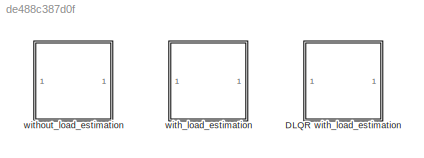
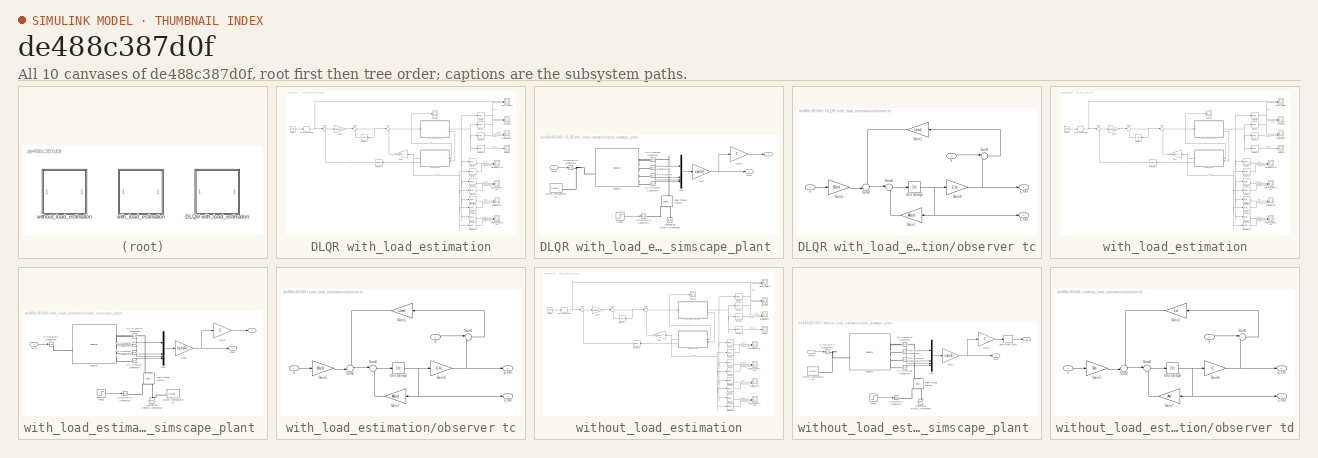
[diagram: thumbnail index - all 10 canvases of the model, root first then tree order]
MODEL slx_de488c387d0f
KIND model
CONFIG AbsTol = auto
CONFIG EnableMultiTasking = off
CONFIG FixedStep = ts
CONFIG MaxStep = ts
CONFIG MinStep = auto
CONFIG RelTol = 1e-3
CONFIG SampleTimeConstraint = Unconstrained
CONFIG SolverName = ode1be
CONFIG StartTime = 0.0
CONFIG StopTime = simlength
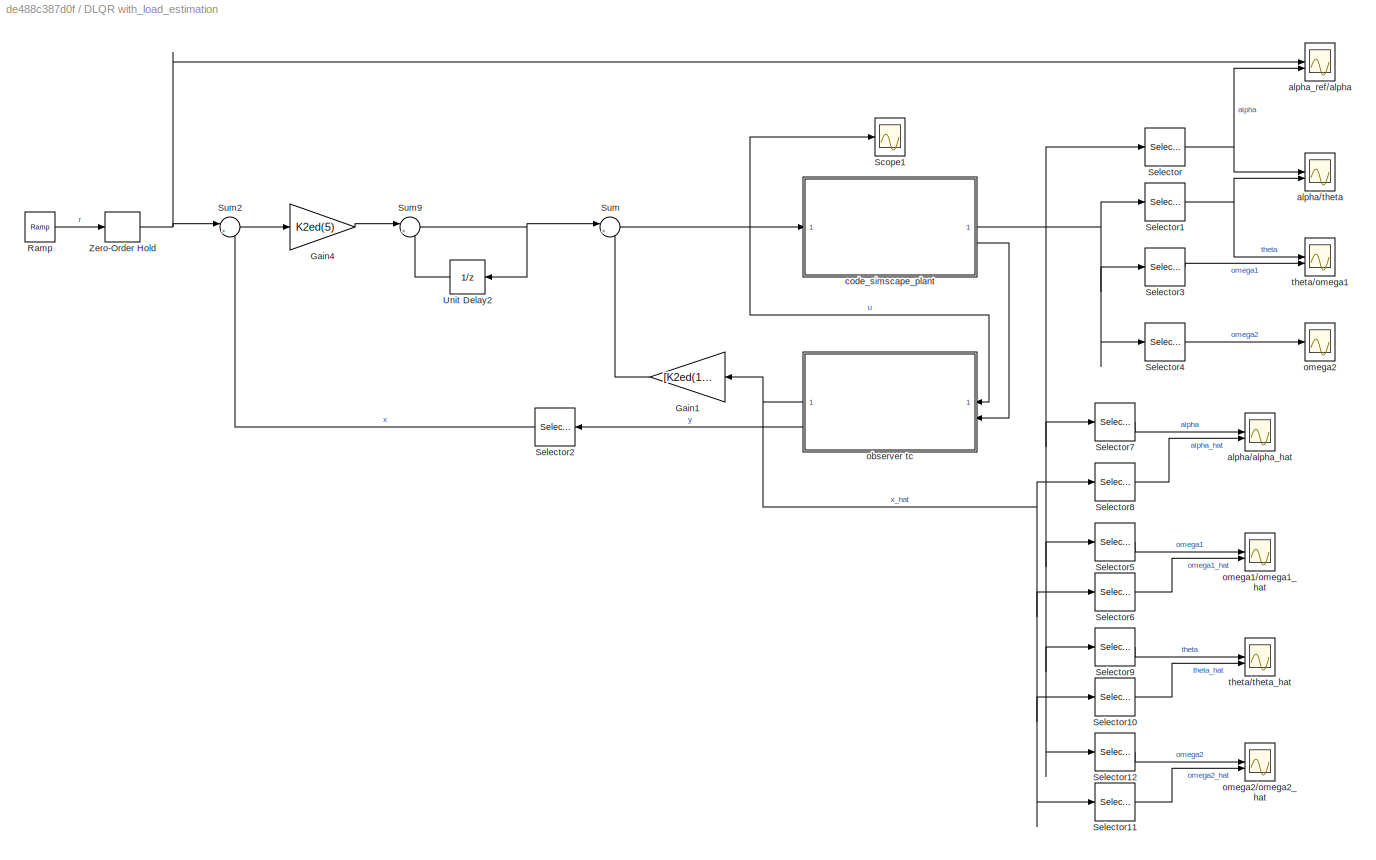
BLOCK [SubSystem] DLQR with_load_estimation
BLOCK [Gain] DLQR with_load_estimation/Gain1
  Gain = [K2ed(1) K2ed(2) K2ed(3) K2ed(4) 0]
  Multiplication = Matrix(K*u)
  NameLocation = top
BLOCK [Gain] DLQR with_load_estimation/Gain4
  Gain = K2ed(5)
  NameLocation = top
BLOCK [Reference] DLQR with_load_estimation/Ramp  REF=simulink/Sources/Ramp
  SourceBlock = simulink/Sources/Ramp
  SourceType = Ramp
BLOCK [Scope] DLQR with_load_estimation/Scope1
  ActiveDisplayYMaximum = 910.39964
  ActiveDisplayYMinimum = -742.20973
  ContainerLayout = {"WindowBounds":[384,156,1280,768],"gridDimensions":{"w":1,"h":1},"tileCount":1,"tileCoverage":1,"columnWeights":1,"rowWeights":1,"tileOccupancy":{"children":[{"id":"/with_load_estimation/Scope1"},{"id":"/DLQR with_load_estimation/Scope1"},{"id":"/with_load_estimation/omega1//omega1_hat"},{"id":"/DLQR with_load_estimation/alpha//alpha_hat"}]}}  <repeated x4 — deduplicated; at blocks: Scope1, alpha/alpha_hat, omega1/omega1_hat>
  DataLoggingVariableName = ScopeData1
  Floating = off
  GraphicalSettings = {"Style":{"BackgroundColor":[0.12941176470588237,0.12941176470588237,0.12941176470588237],"AxesColor":[0.07058823529411765,0.07058823529411765,0.07058823529411765],"LabelsColor":[0.8509803921568627,0.8509803921568627,0.8509803921568627],"PreserveColors":false,"Visible":[true],"LineStyle":["-"],"LineWidth":[3],"BarWidth":[0.9],"LineColor":["auto"],"LineFaceAlpha":[1],"LineEdgeAlpha":[1],"Marker":["...<+1931ch>
  MultipleDisplayCache = [{"MaxYLimMag":910.39964,"MaxYLimReal":910.39964,"MinYLimMag":0,"MinYLimReal":-742.20973,"PlotAsMagnitudePhase":false,"ShowGrid":true,"ShowLegend":true,"Title":"%<SignalLabel>","YLabel":""}]  <repeated x3 — deduplicated; at blocks: Scope1>
  NumInputPorts = 1
  ScopeFrameLocation = container
  ShowLegend = on
  Visible = on
  WasSavedAsWebScope = on
  WindowPosition = [384.000000,156.000000,1280.000000,768.000000,]
BLOCK [Selector] DLQR with_load_estimation/Selector
  IndexOptions = Index vector (dialog)
  Indices = 1
  InputPortWidth = 4
  OutputSizes = 1
BLOCK [Selector] DLQR with_load_estimation/Selector1
  IndexOptions = Index vector (dialog)
  Indices = 3
  InputPortWidth = 4
  OutputSizes = 1
BLOCK [Selector] DLQR with_load_estimation/Selector10
  IndexOptions = Index vector (dialog)
  Indices = 3
  InputPortWidth = 5
  OutputSizes = 1
BLOCK [Selector] DLQR with_load_estimation/Selector11
  IndexOptions = Index vector (dialog)
  Indices = 4
  InputPortWidth = 5
  OutputSizes = 1
BLOCK [Selector] DLQR with_load_estimation/Selector12
  IndexOptions = Index vector (dialog)
  Indices = 4
  InputPortWidth = 4
  OutputSizes = 1
BLOCK [Selector] DLQR with_load_estimation/Selector2
  IndexOptions = Index vector (dialog)
  Indices = 1
  InputPortWidth = 2
  NameLocation = top
  OutputSizes = 1
BLOCK [Selector] DLQR with_load_estimation/Selector3
  IndexOptions = Index vector (dialog)
  Indices = 2
  InputPortWidth = 4
  OutputSizes = 1
BLOCK [Selector] DLQR with_load_estimation/Selector4
  IndexOptions = Index vector (dialog)
  Indices = 4
  InputPortWidth = 4
  OutputSizes = 1
BLOCK [Selector] DLQR with_load_estimation/Selector5
  IndexOptions = Index vector (dialog)
  Indices = 2
  InputPortWidth = 4
  OutputSizes = 1
BLOCK [Selector] DLQR with_load_estimation/Selector6
  IndexOptions = Index vector (dialog)
  Indices = 2
  InputPortWidth = 5
  OutputSizes = 1
BLOCK [Selector] DLQR with_load_estimation/Selector7
  IndexOptions = Index vector (dialog)
  Indices = 1
  InputPortWidth = 4
  OutputSizes = 1
BLOCK [Selector] DLQR with_load_estimation/Selector8
  IndexOptions = Index vector (dialog)
  Indices = 1
  InputPortWidth = 5
  OutputSizes = 1
BLOCK [Selector] DLQR with_load_estimation/Selector9
  IndexOptions = Index vector (dialog)
  Indices = 3
  InputPortWidth = 4
  OutputSizes = 1
BLOCK [Sum] DLQR with_load_estimation/Sum
  Inputs = |+-
BLOCK [Sum] DLQR with_load_estimation/Sum2
  Inputs = |+-
BLOCK [Sum] DLQR with_load_estimation/Sum9
  Inputs = |++
BLOCK [UnitDelay] DLQR with_load_estimation/Unit Delay2
  HasFrameUpgradeWarning = on
  SampleTime = ts
BLOCK [ZeroOrderHold] DLQR with_load_estimation/Zero-Order Hold
  SampleTime = ts
BLOCK [Scope] DLQR with_load_estimation/alpha//alpha_hat
  ActiveDisplayYMaximum = 446.41346
  ActiveDisplayYMinimum = -49.71948
  DataLoggingVariableName = ScopeData1
  Floating = off
  GraphicalSettings = {"Style":{"BackgroundColor":[0.12941176470588237,0.12941176470588237,0.12941176470588237],"AxesColor":[0.07058823529411765,0.07058823529411765,0.07058823529411765],"LabelsColor":[0.8509803921568627,0.8509803921568627,0.8509803921568627],"PreserveColors":false,"Visible":[true,true],"LineStyle":["-","-"],"LineWidth":[3,3],"BarWidth":[0.9,0.9],"LineColor":["auto","auto"],"LineFaceAlpha":[1,1],"LineEd...<+2054ch>
  MultipleDisplayCache = [{"MaxYLimMag":446.41346,"MaxYLimReal":446.41346,"MinYLimMag":0,"MinYLimReal":-49.71948,"PlotAsMagnitudePhase":false,"ShowGrid":true,"ShowLegend":true,"Title":"%<SignalLabel>","YLabel":""}]  <repeated x3 — deduplicated; at blocks: alpha/alpha_hat>
  NumInputPorts = 2
  ScopeFrameLocation = container
  ShowLegend = on
  Visible = on
  WasSavedAsWebScope = on
  WindowPosition = [384.000000,156.000000,1280.000000,768.000000,]
BLOCK [Scope] DLQR with_load_estimation/alpha//theta
  ActiveDisplayYMaximum = 582.20371
  ActiveDisplayYMinimum = -64.87437
  DataLoggingVariableName = ScopeData1
  Floating = off
  GraphicalSettings = {"GraphicalSettings":{"LegacySettings":true,"Style":{"AxesScalingProperties":{"ScaleAxesLimitsAtStop":false},"Style":{"AxesColor":"[0 0 0]","ChannelNames":["",""],"ColorOrder":"[1 1 0.0666666666666667;0.0745098039215686 0.623529411764706 1;1 0.411764705882353 0.16078431372549;0.392156862745098 0.831372549019608 0.0745098039215686;0.717647058823529 0.274509803921569 1;0.0588235294117647 1 1;1 0.074...<+533ch>  <repeated x3 — deduplicated; at blocks: alpha/theta>
  LayoutDimensionsString = [2 1]
  MultipleDisplayCache = [{"MaxYLimMag":582.20371,"MaxYLimReal":582.20371,"MinYLimMag":0,"MinYLimReal":-64.87437,"PlotAsMagnitudePhase":false,"ShowGrid":true,"ShowLegend":true,"Title":"%<SignalLabel>","YLabel":""},{"MaxYLimMag":9.54603,"MaxYLimReal":0.15514,"MinYLimMag":0,"MinYLimReal":-0.78741,"PlotAsMagnitudePhase":false,"ShowGrid":true,"ShowLegend":true,"Title":"%<SignalLabel>","YLabel":""}]
  NumInputPorts = 2
  ShowLegend = on
  WasSavedAsWebScope = on
BLOCK [Scope] DLQR with_load_estimation/alpha_ref//alpha
  ActiveDisplayYMaximum = 642.87796
  ActiveDisplayYMinimum = -71.61595
  DataLoggingVariableName = ScopeData1
  Floating = off
  GraphicalSettings = {"Style":{"BackgroundColor":[0.12941176470588237,0.12941176470588237,0.12941176470588237],"AxesColor":[0.07058823529411765,0.07058823529411765,0.07058823529411765],"LabelsColor":[0.8509803921568627,0.8509803921568627,0.8509803921568627],"PreserveColors":false,"Visible":[true,true],"LineStyle":["-","-"],"LineWidth":[3,3],"BarWidth":[0.9,0.9],"LineColor":["auto",[1,1,0.06666666666666667]],"LineFaceA...<+2051ch>
  MultipleDisplayCache = [{"MaxYLimMag":642.87796,"MaxYLimReal":642.87796,"MinYLimMag":0,"MinYLimReal":-71.61595,"PlotAsMagnitudePhase":false,"ShowGrid":true,"ShowLegend":true,"Title":"%<SignalLabel>","YLabel":""}]
  NumInputPorts = 2
  ScopeFrameLocation = window
  ShowLegend = on
  WasSavedAsWebScope = on
  WindowPosition = [744.000000,330.000000,560.000000,420.000000,]
BLOCK [SubSystem] DLQR with_load_estimation/code_simscape_plant 
BLOCK [Gain] DLQR with_load_estimation/code_simscape_plant /Gain
  Gain = eye(4)
  Multiplication = Matrix(K*u)
BLOCK [Gain] DLQR with_load_estimation/code_simscape_plant /Gain1
  Gain = C
  Multiplication = Matrix(K*u)
BLOCK [Reference] DLQR with_load_estimation/code_simscape_plant /Ideal Torque Source  REF=fl_lib/Mechanical/Mechanical Sources/Ideal Torque Source
  NameLocation = right
  SourceBlock = fl_lib/Mechanical/Mechanical Sources/Ideal Torque Source
  SourceType = Ideal Torque Source
BLOCK [Reference] DLQR with_load_estimation/code_simscape_plant /Mechanical Rotational Reference  REF=fl_lib/Mechanical/Rotational Elements/Mechanical
Rotational Reference
  NameLocation = right
  SourceBlock = fl_lib/Mechanical/Rotational Elements/Mechanical\nRotational Reference
  SourceType = Mechanical\nRotational Reference
BLOCK [Mux] DLQR with_load_estimation/code_simscape_plant /Mux
  DisplayOption = bar
BLOCK [Reference] DLQR with_load_estimation/code_simscape_plant /PS-Simulink Converter1  REF=nesl_utility/PS-Simulink
Converter
  NameLocation = top
  SourceBlock = nesl_utility/PS-Simulink\nConverter
  SourceType = PS-Simulink\nConverter
BLOCK [Reference] DLQR with_load_estimation/code_simscape_plant /PS-Simulink Converter2  REF=nesl_utility/PS-Simulink
Converter
  SourceBlock = nesl_utility/PS-Simulink\nConverter
  SourceType = PS-Simulink\nConverter
BLOCK [Reference] DLQR with_load_estimation/code_simscape_plant /PS-Simulink Converter3  REF=nesl_utility/PS-Simulink
Converter
  NameLocation = top
  SourceBlock = nesl_utility/PS-Simulink\nConverter
  SourceType = PS-Simulink\nConverter
BLOCK [Reference] DLQR with_load_estimation/code_simscape_plant /PS-Simulink Converter4  REF=nesl_utility/PS-Simulink
Converter
  NameLocation = top
  SourceBlock = nesl_utility/PS-Simulink\nConverter
  SourceType = PS-Simulink\nConverter
BLOCK [Reference] DLQR with_load_estimation/code_simscape_plant /Simulink-PS Converter1  REF=nesl_utility/Simulink-PS
Converter
  SourceBlock = nesl_utility/Simulink-PS\nConverter
  SourceType = Simulink-PS\nConverter
BLOCK [Reference] DLQR with_load_estimation/code_simscape_plant /Simulink-PS Converter3  REF=nesl_utility/Simulink-PS
Converter
  SourceBlock = nesl_utility/Simulink-PS\nConverter
  SourceType = Simulink-PS\nConverter
BLOCK [Reference] DLQR with_load_estimation/code_simscape_plant /Solver Configuration1  REF=nesl_utility/Solver
Configuration
  SourceBlock = nesl_utility/Solver\nConfiguration
  SourceType = Solver\nConfiguration
BLOCK [Step] DLQR with_load_estimation/code_simscape_plant /Step1
  After = 250
  SampleTime = 0
  Time = simlength/2
BLOCK [Reference] DLQR with_load_estimation/code_simscape_plant /segway  REF=segway_lib/segway
  SourceBlock = segway_lib/segway
  SourceType = segway
BLOCK [Outport] DLQR with_load_estimation/code_simscape_plant /state
BLOCK [Inport] DLQR with_load_estimation/code_simscape_plant /tau_m
BLOCK [Outport] DLQR with_load_estimation/code_simscape_plant /y
  Port = 2
BLOCK [SubSystem] DLQR with_load_estimation/observer tc
  NameLocation = top
BLOCK [Gain] DLQR with_load_estimation/observer tc/Gain1
  Gain = Lled
  Multiplication = Matrix(K*u)
  NameLocation = top
BLOCK [Gain] DLQR with_load_estimation/observer tc/Gain5
  Gain = Bled
  Multiplication = Matrix(K*u)
BLOCK [Gain] DLQR with_load_estimation/observer tc/Gain6
  Gain = Cle
  Multiplication = Matrix(K*u)
BLOCK [Gain] DLQR with_load_estimation/observer tc/Gain7
  Gain = Aled
  Multiplication = Matrix(K*u)
BLOCK [Sum] DLQR with_load_estimation/observer tc/Sum1
  Inputs = |+-
BLOCK [Sum] DLQR with_load_estimation/observer tc/Sum2
  Inputs = ++|
BLOCK [Sum] DLQR with_load_estimation/observer tc/Sum3
  Inputs = |++
BLOCK [UnitDelay] DLQR with_load_estimation/observer tc/Unit Delay2
  HasFrameUpgradeWarning = on
  SampleTime = ts
BLOCK [Inport] DLQR with_load_estimation/observer tc/u
BLOCK [Outport] DLQR with_load_estimation/observer tc/x_hat
BLOCK [Inport] DLQR with_load_estimation/observer tc/y
  Port = 2
BLOCK [Outport] DLQR with_load_estimation/observer tc/y_hat
  Port = 2
BLOCK [Scope] DLQR with_load_estimation/omega1//omega1_hat
  ActiveDisplayYMaximum = 38.85623
  ActiveDisplayYMinimum = -8.78624
  DataLoggingVariableName = ScopeData2
  Floating = off
  GraphicalSettings = {"GraphicalSettings":{"LegacySettings":true,"Style":{"AxesScalingProperties":{"ScaleAxesLimitsAtStop":false},"Style":{"AxesColor":"[0 0 0]","ChannelNames":[""],"ColorOrder":"[1 1 0.0666666666666667;0.0745098039215686 0.623529411764706 1;1 0.411764705882353 0.16078431372549;0.392156862745098 0.831372549019608 0.0745098039215686;0.717647058823529 0.274509803921569 1;0.0588235294117647 1 1;1 0.074509...<+725ch>
  MultipleDisplayCache = [{"MaxYLimMag":38.85623,"MaxYLimReal":38.85623,"MinYLimMag":0,"MinYLimReal":-8.78624,"PlotAsMagnitudePhase":false,"ShowGrid":true,"ShowLegend":true,"Title":"%<SignalLabel>","YLabel":""}]  <repeated x6 — deduplicated; at blocks: omega1/omega1_hat, omega2/omega2_hat>
  NumInputPorts = 2
  ShowLegend = on
  WasSavedAsWebScope = on
BLOCK [Scope] DLQR with_load_estimation/omega2
  ActiveDisplayYMaximum = 4.77789
  ActiveDisplayYMinimum = -5.16554
  DataLoggingVariableName = ScopeData3
  Floating = off
  GraphicalSettings = {"GraphicalSettings":{"LegacySettings":true,"Style":{"AxesScalingProperties":{"ScaleAxesLimitsAtStop":false},"Style":{"AxesColor":"[0 0 0]","ChannelNames":[""],"ColorOrder":"[1 1 0.0666666666666667;0.0745098039215686 0.623529411764706 1;1 0.411764705882353 0.16078431372549;0.392156862745098 0.831372549019608 0.0745098039215686;0.717647058823529 0.274509803921569 1;0.0588235294117647 1 1;1 0.074509...<+487ch>  <repeated x3 — deduplicated; at blocks: omega2>
  MultipleDisplayCache = [{"MaxYLimMag":5.16554,"MaxYLimReal":4.77789,"MinYLimMag":0,"MinYLimReal":-5.16554,"PlotAsMagnitudePhase":false,"ShowGrid":true,"ShowLegend":true,"Title":"%<SignalLabel>","YLabel":""}]  <repeated x3 — deduplicated; at blocks: omega2>
  NumInputPorts = 1
  ShowLegend = on
  WasSavedAsWebScope = on
BLOCK [Scope] DLQR with_load_estimation/omega2//omega2_hat
  ActiveDisplayYMaximum = 38.85623
  ActiveDisplayYMinimum = -8.78624
  DataLoggingVariableName = ScopeData3
  Floating = off
  GraphicalSettings = {"GraphicalSettings":{"LegacySettings":true,"Style":{"AxesScalingProperties":{"ScaleAxesLimitsAtStop":false},"Style":{"AxesColor":"[0 0 0]","ChannelNames":[""],"ColorOrder":"[1 1 0.0666666666666667;0.0745098039215686 0.623529411764706 1;1 0.411764705882353 0.16078431372549;0.392156862745098 0.831372549019608 0.0745098039215686;0.717647058823529 0.274509803921569 1;0.0588235294117647 1 1;1 0.074509...<+723ch>  <repeated x6 — deduplicated; at blocks: omega2/omega2_hat, alpha/alpha_hat, theta/theta_hat>
  NumInputPorts = 2
  ShowLegend = on
  WasSavedAsWebScope = on
BLOCK [Scope] DLQR with_load_estimation/theta//omega1
  ActiveDisplayYMaximum = 0.08551
  ActiveDisplayYMinimum = -0.39728
  DataLoggingVariableName = ScopeData2
  Floating = off
  GraphicalSettings = {"GraphicalSettings":{"LegacySettings":true,"Style":{"AxesScalingProperties":{"ScaleAxesLimitsAtStop":false},"Style":{"AxesColor":"[0 0 0]","ChannelNames":["",""],"ColorOrder":"[1 1 0.0666666666666667;0.0745098039215686 0.623529411764706 1;1 0.411764705882353 0.16078431372549;0.392156862745098 0.831372549019608 0.0745098039215686;0.717647058823529 0.274509803921569 1;0.0588235294117647 1 1;1 0.074...<+535ch>
  LayoutDimensionsString = [2 1]
  MultipleDisplayCache = [{"MaxYLimMag":0.39728,"MaxYLimReal":0.08551,"MinYLimMag":0,"MinYLimReal":-0.39728,"PlotAsMagnitudePhase":false,"ShowGrid":true,"ShowLegend":true,"Title":"%<SignalLabel>","YLabel":""},{"MaxYLimMag":9.54603,"MaxYLimReal":34.33661,"MinYLimMag":0,"MinYLimReal":-11.18651,"PlotAsMagnitudePhase":false,"ShowGrid":true,"ShowLegend":true,"Title":"%<SignalLabel>","YLabel":""}]
  NumInputPorts = 2
  ShowLegend = on
  WasSavedAsWebScope = on
BLOCK [Scope] DLQR with_load_estimation/theta//theta_hat
  ActiveDisplayYMaximum = 0.13968
  ActiveDisplayYMinimum = -0.7598
  DataLoggingVariableName = ScopeData2
  Floating = off
  GraphicalSettings = {"GraphicalSettings":{"LegacySettings":true,"Style":{"AxesScalingProperties":{"ScaleAxesLimitsAtStop":false},"Style":{"AxesColor":"[0 0 0]","ChannelNames":[""],"ColorOrder":"[1 1 0.0666666666666667;0.0745098039215686 0.623529411764706 1;1 0.411764705882353 0.16078431372549;0.392156862745098 0.831372549019608 0.0745098039215686;0.717647058823529 0.274509803921569 1;0.0588235294117647 1 1;1 0.074509...<+729ch>  <repeated x3 — deduplicated; at blocks: theta/theta_hat, omega1/omega1_hat>
  MultipleDisplayCache = [{"MaxYLimMag":0.7598,"MaxYLimReal":0.13968,"MinYLimMag":0,"MinYLimReal":-0.7598,"PlotAsMagnitudePhase":false,"ShowGrid":true,"ShowLegend":true,"Title":"%<SignalLabel>","YLabel":""}]  <repeated x3 — deduplicated; at blocks: theta/theta_hat>
  NumInputPorts = 2
  ShowLegend = on
  WasSavedAsWebScope = on
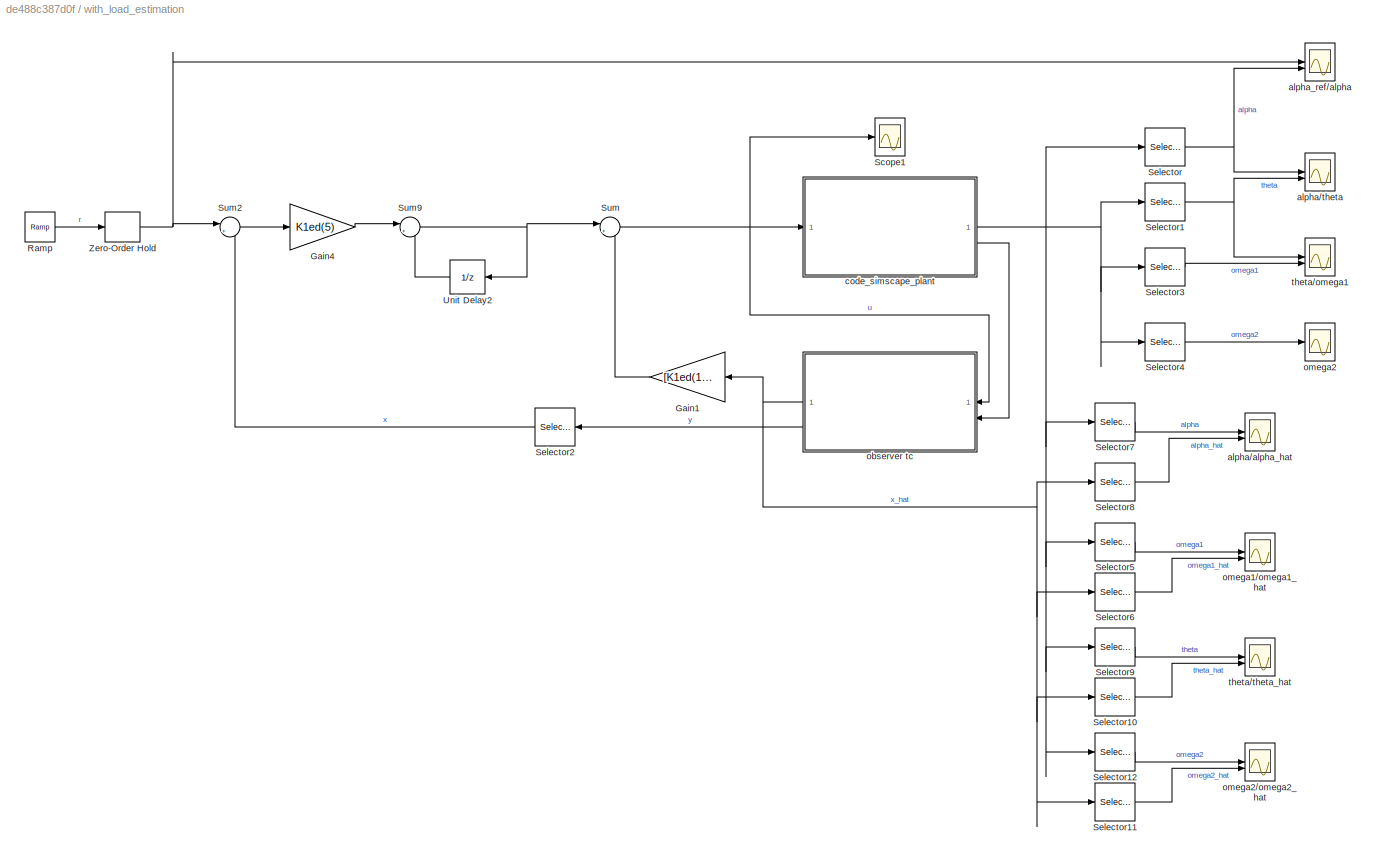
BLOCK [SubSystem] with_load_estimation
BLOCK [Gain] with_load_estimation/Gain1
  Gain = [K1ed(1) K1ed(2) K1ed(3) K1ed(4) 0]
  Multiplication = Matrix(K*u)
  NameLocation = top
BLOCK [Gain] with_load_estimation/Gain4
  Gain = K1ed(5)
  NameLocation = top
BLOCK [Reference] with_load_estimation/Ramp  REF=simulink/Sources/Ramp
  SourceBlock = simulink/Sources/Ramp
  SourceType = Ramp
BLOCK [Scope] with_load_estimation/Scope1
  ActiveDisplayYMaximum = 910.39964
  ActiveDisplayYMinimum = -742.20973
  DataLoggingVariableName = ScopeData1
  Floating = off
  GraphicalSettings = {"Style":{"BackgroundColor":[0.12941176470588237,0.12941176470588237,0.12941176470588237],"AxesColor":[0.07058823529411765,0.07058823529411765,0.07058823529411765],"LabelsColor":[0.8509803921568627,0.8509803921568627,0.8509803921568627],"PreserveColors":false,"Visible":[true],"LineStyle":["-"],"LineWidth":[3],"BarWidth":[0.9],"LineColor":["auto"],"LineFaceAlpha":[1],"LineEdgeAlpha":[1],"Marker":["...<+1931ch>
  NumInputPorts = 1
  ScopeFrameLocation = container
  ShowLegend = on
  Visible = on
  WasSavedAsWebScope = on
  WindowPosition = [384.000000,156.000000,1280.000000,768.000000,]
BLOCK [Selector] with_load_estimation/Selector
  IndexOptions = Index vector (dialog)
  Indices = 1
  InputPortWidth = 4
  OutputSizes = 1
BLOCK [Selector] with_load_estimation/Selector1
  IndexOptions = Index vector (dialog)
  Indices = 3
  InputPortWidth = 4
  OutputSizes = 1
BLOCK [Selector] with_load_estimation/Selector10
  IndexOptions = Index vector (dialog)
  Indices = 3
  InputPortWidth = 5
  OutputSizes = 1
BLOCK [Selector] with_load_estimation/Selector11
  IndexOptions = Index vector (dialog)
  Indices = 4
  InputPortWidth = 5
  OutputSizes = 1
BLOCK [Selector] with_load_estimation/Selector12
  IndexOptions = Index vector (dialog)
  Indices = 4
  InputPortWidth = 4
  OutputSizes = 1
BLOCK [Selector] with_load_estimation/Selector2
  IndexOptions = Index vector (dialog)
  Indices = 1
  InputPortWidth = 2
  NameLocation = top
  OutputSizes = 1
BLOCK [Selector] with_load_estimation/Selector3
  IndexOptions = Index vector (dialog)
  Indices = 2
  InputPortWidth = 4
  OutputSizes = 1
BLOCK [Selector] with_load_estimation/Selector4
  IndexOptions = Index vector (dialog)
  Indices = 4
  InputPortWidth = 4
  OutputSizes = 1
BLOCK [Selector] with_load_estimation/Selector5
  IndexOptions = Index vector (dialog)
  Indices = 2
  InputPortWidth = 4
  OutputSizes = 1
BLOCK [Selector] with_load_estimation/Selector6
  IndexOptions = Index vector (dialog)
  Indices = 2
  InputPortWidth = 5
  OutputSizes = 1
BLOCK [Selector] with_load_estimation/Selector7
  IndexOptions = Index vector (dialog)
  Indices = 1
  InputPortWidth = 4
  OutputSizes = 1
BLOCK [Selector] with_load_estimation/Selector8
  IndexOptions = Index vector (dialog)
  Indices = 1
  InputPortWidth = 5
  OutputSizes = 1
BLOCK [Selector] with_load_estimation/Selector9
  IndexOptions = Index vector (dialog)
  Indices = 3
  InputPortWidth = 4
  OutputSizes = 1
BLOCK [Sum] with_load_estimation/Sum
  Inputs = |+-
BLOCK [Sum] with_load_estimation/Sum2
  Inputs = |+-
BLOCK [Sum] with_load_estimation/Sum9
  Inputs = |++
BLOCK [UnitDelay] with_load_estimation/Unit Delay2
  HasFrameUpgradeWarning = on
  SampleTime = ts
BLOCK [ZeroOrderHold] with_load_estimation/Zero-Order Hold
  SampleTime = ts
BLOCK [Scope] with_load_estimation/alpha//alpha_hat
  ActiveDisplayYMaximum = 446.41346
  ActiveDisplayYMinimum = -49.71948
  DataLoggingVariableName = ScopeData1
  Floating = off
  NumInputPorts = 2
  ShowLegend = on
  WasSavedAsWebScope = on
BLOCK [Scope] with_load_estimation/alpha//theta
  ActiveDisplayYMaximum = 582.20371
  ActiveDisplayYMinimum = -64.87437
  DataLoggingVariableName = ScopeData1
  Floating = off
  LayoutDimensionsString = [2 1]
  MultipleDisplayCache = [{"MaxYLimMag":582.20371,"MaxYLimReal":582.20371,"MinYLimMag":0,"MinYLimReal":-64.87437,"PlotAsMagnitudePhase":false,"ShowGrid":true,"ShowLegend":true,"Title":"%<SignalLabel>","YLabel":""},{"MaxYLimMag":9.54603,"MaxYLimReal":0.15514,"MinYLimMag":0,"MinYLimReal":-0.78741,"PlotAsMagnitudePhase":false,"ShowGrid":true,"ShowLegend":true,"Title":"%<SignalLabel>","YLabel":""}]
  NumInputPorts = 2
  ShowLegend = on
  WasSavedAsWebScope = on
BLOCK [Scope] with_load_estimation/alpha_ref//alpha
  ActiveDisplayYMaximum = 642.87796
  ActiveDisplayYMinimum = -71.61595
  DataLoggingVariableName = ScopeData1
  Floating = off
  GraphicalSettings = {"Style":{"BackgroundColor":[0.12941176470588237,0.12941176470588237,0.12941176470588237],"AxesColor":[0.07058823529411765,0.07058823529411765,0.07058823529411765],"LabelsColor":[0.8509803921568627,0.8509803921568627,0.8509803921568627],"PreserveColors":false,"Visible":[true,true],"LineStyle":["-","-"],"LineWidth":[3,3],"BarWidth":[0.9,0.9],"LineColor":["auto",[1,1,0.06666666666666667]],"LineFaceA...<+2051ch>
  MultipleDisplayCache = [{"MaxYLimMag":642.87796,"MaxYLimReal":642.87796,"MinYLimMag":0,"MinYLimReal":-71.61595,"PlotAsMagnitudePhase":false,"ShowGrid":true,"ShowLegend":true,"Title":"%<SignalLabel>","YLabel":""}]
  NumInputPorts = 2
  ScopeFrameLocation = window
  ShowLegend = on
  WasSavedAsWebScope = on
  WindowPosition = [744.000000,330.000000,560.000000,420.000000,]
BLOCK [SubSystem] with_load_estimation/code_simscape_plant 
BLOCK [Gain] with_load_estimation/code_simscape_plant /Gain
  Gain = eye(4)
  Multiplication = Matrix(K*u)
BLOCK [Gain] with_load_estimation/code_simscape_plant /Gain1
  Gain = C
  Multiplication = Matrix(K*u)
BLOCK [Reference] with_load_estimation/code_simscape_plant /Ideal Torque Source  REF=fl_lib/Mechanical/Mechanical Sources/Ideal Torque Source
  NameLocation = right
  SourceBlock = fl_lib/Mechanical/Mechanical Sources/Ideal Torque Source
  SourceType = Ideal Torque Source
BLOCK [Reference] with_load_estimation/code_simscape_plant /Mechanical Rotational Reference  REF=fl_lib/Mechanical/Rotational Elements/Mechanical
Rotational Reference
  NameLocation = right
  SourceBlock = fl_lib/Mechanical/Rotational Elements/Mechanical\nRotational Reference
  SourceType = Mechanical\nRotational Reference
BLOCK [Mux] with_load_estimation/code_simscape_plant /Mux
  DisplayOption = bar
BLOCK [Reference] with_load_estimation/code_simscape_plant /PS-Simulink Converter1  REF=nesl_utility/PS-Simulink
Converter
  NameLocation = top
  SourceBlock = nesl_utility/PS-Simulink\nConverter
  SourceType = PS-Simulink\nConverter
BLOCK [Reference] with_load_estimation/code_simscape_plant /PS-Simulink Converter2  REF=nesl_utility/PS-Simulink
Converter
  SourceBlock = nesl_utility/PS-Simulink\nConverter
  SourceType = PS-Simulink\nConverter
BLOCK [Reference] with_load_estimation/code_simscape_plant /PS-Simulink Converter3  REF=nesl_utility/PS-Simulink
Converter
  NameLocation = top
  SourceBlock = nesl_utility/PS-Simulink\nConverter
  SourceType = PS-Simulink\nConverter
BLOCK [Reference] with_load_estimation/code_simscape_plant /PS-Simulink Converter4  REF=nesl_utility/PS-Simulink
Converter
  NameLocation = top
  SourceBlock = nesl_utility/PS-Simulink\nConverter
  SourceType = PS-Simulink\nConverter
BLOCK [Reference] with_load_estimation/code_simscape_plant /Simulink-PS Converter1  REF=nesl_utility/Simulink-PS
Converter
  SourceBlock = nesl_utility/Simulink-PS\nConverter
  SourceType = Simulink-PS\nConverter
BLOCK [Reference] with_load_estimation/code_simscape_plant /Simulink-PS Converter3  REF=nesl_utility/Simulink-PS
Converter
  SourceBlock = nesl_utility/Simulink-PS\nConverter
  SourceType = Simulink-PS\nConverter
BLOCK [Reference] with_load_estimation/code_simscape_plant /Solver Configuration1  REF=nesl_utility/Solver
Configuration
  SourceBlock = nesl_utility/Solver\nConfiguration
  SourceType = Solver\nConfiguration
BLOCK [Step] with_load_estimation/code_simscape_plant /Step1
  After = 250
  SampleTime = 0
  Time = simlength/2
BLOCK [Reference] with_load_estimation/code_simscape_plant /segway  REF=segway_lib/segway
  SourceBlock = segway_lib/segway
  SourceType = segway
BLOCK [Outport] with_load_estimation/code_simscape_plant /state
BLOCK [Inport] with_load_estimation/code_simscape_plant /tau_m
BLOCK [Outport] with_load_estimation/code_simscape_plant /y
  Port = 2
BLOCK [SubSystem] with_load_estimation/observer tc
  NameLocation = top
BLOCK [Gain] with_load_estimation/observer tc/Gain1
  Gain = Lled
  Multiplication = Matrix(K*u)
  NameLocation = top
BLOCK [Gain] with_load_estimation/observer tc/Gain5
  Gain = Bled
  Multiplication = Matrix(K*u)
BLOCK [Gain] with_load_estimation/observer tc/Gain6
  Gain = Cle
  Multiplication = Matrix(K*u)
BLOCK [Gain] with_load_estimation/observer tc/Gain7
  Gain = Aled
  Multiplication = Matrix(K*u)
BLOCK [Sum] with_load_estimation/observer tc/Sum1
  Inputs = |+-
BLOCK [Sum] with_load_estimation/observer tc/Sum2
  Inputs = ++|
BLOCK [Sum] with_load_estimation/observer tc/Sum3
  Inputs = |++
BLOCK [UnitDelay] with_load_estimation/observer tc/Unit Delay2
  HasFrameUpgradeWarning = on
  SampleTime = ts
BLOCK [Inport] with_load_estimation/observer tc/u
BLOCK [Outport] with_load_estimation/observer tc/x_hat
BLOCK [Inport] with_load_estimation/observer tc/y
  Port = 2
BLOCK [Outport] with_load_estimation/observer tc/y_hat
  Port = 2
BLOCK [Scope] with_load_estimation/omega1//omega1_hat
  ActiveDisplayYMaximum = 38.85623
  ActiveDisplayYMinimum = -8.78624
  DataLoggingVariableName = ScopeData2
  Floating = off
  GraphicalSettings = {"Style":{"BackgroundColor":[0.12941176470588237,0.12941176470588237,0.12941176470588237],"AxesColor":[0.07058823529411765,0.07058823529411765,0.07058823529411765],"LabelsColor":[0.8509803921568627,0.8509803921568627,0.8509803921568627],"PreserveColors":false,"Visible":[true,true],"LineStyle":["-","-"],"LineWidth":[3,3],"BarWidth":[0.9,0.9],"LineColor":["auto","auto"],"LineFaceAlpha":[1,1],"LineEd...<+2052ch>
  NumInputPorts = 2
  ScopeFrameLocation = container
  ShowLegend = on
  Visible = on
  WasSavedAsWebScope = on
  WindowPosition = [384.000000,156.000000,1280.000000,768.000000,]
BLOCK [Scope] with_load_estimation/omega2
  ActiveDisplayYMaximum = 4.77789
  ActiveDisplayYMinimum = -5.16554
  DataLoggingVariableName = ScopeData3
  Floating = off
  NumInputPorts = 1
  ShowLegend = on
  WasSavedAsWebScope = on
BLOCK [Scope] with_load_estimation/omega2//omega2_hat
  ActiveDisplayYMaximum = 38.85623
  ActiveDisplayYMinimum = -8.78624
  DataLoggingVariableName = ScopeData3
  Floating = off
  NumInputPorts = 2
  ShowLegend = on
  WasSavedAsWebScope = on
BLOCK [Scope] with_load_estimation/theta//omega1
  ActiveDisplayYMaximum = 0.16159
  ActiveDisplayYMinimum = -0.76224
  DataLoggingVariableName = ScopeData2
  Floating = off
  GraphicalSettings = {"GraphicalSettings":{"LegacySettings":true,"Style":{"AxesScalingProperties":{"ScaleAxesLimitsAtStop":false},"Style":{"AxesColor":"[0 0 0]","ChannelNames":["",""],"ColorOrder":"[1 1 0.0666666666666667;0.0745098039215686 0.623529411764706 1;1 0.411764705882353 0.16078431372549;0.392156862745098 0.831372549019608 0.0745098039215686;0.717647058823529 0.274509803921569 1;0.0588235294117647 1 1;1 0.074...<+534ch>
  LayoutDimensionsString = [2 1]
  MultipleDisplayCache = [{"MaxYLimMag":0.76224,"MaxYLimReal":0.16159,"MinYLimMag":0,"MinYLimReal":-0.76224,"PlotAsMagnitudePhase":false,"ShowGrid":true,"ShowLegend":true,"Title":"%<SignalLabel>","YLabel":""},{"MaxYLimMag":9.54603,"MaxYLimReal":35.29168,"MinYLimMag":0,"MinYLimReal":-8.39018,"PlotAsMagnitudePhase":false,"ShowGrid":true,"ShowLegend":true,"Title":"%<SignalLabel>","YLabel":""}]
  NumInputPorts = 2
  ShowLegend = on
  WasSavedAsWebScope = on
BLOCK [Scope] with_load_estimation/theta//theta_hat
  ActiveDisplayYMaximum = 0.13968
  ActiveDisplayYMinimum = -0.7598
  DataLoggingVariableName = ScopeData2
  Floating = off
  NumInputPorts = 2
  ShowLegend = on
  WasSavedAsWebScope = on
BLOCK [SubSystem] without_load_estimation
BLOCK [Gain] without_load_estimation/Gain1
  Gain = [K1ed(1) K1ed(2) K1ed(3) K1ed(4)]
  Multiplication = Matrix(K*u)
  NameLocation = top
BLOCK [Gain] without_load_estimation/Gain4
  Gain = K1ed(5)
  NameLocation = top
BLOCK [Reference] without_load_estimation/Ramp  REF=simulink/Sources/Ramp
  SourceBlock = simulink/Sources/Ramp
  SourceType = Ramp
BLOCK [Scope] without_load_estimation/Scope1
  ActiveDisplayYMaximum = 910.39964
  ActiveDisplayYMinimum = -742.20973
  DataLoggingVariableName = ScopeData1
  Floating = off
  GraphicalSettings = {"GraphicalSettings":{"LegacySettings":true,"Style":{"AxesScalingProperties":{"ScaleAxesLimitsAtStop":false},"Style":{"AxesColor":"[0 0 0]","ChannelNames":[""],"ColorOrder":"[1 1 0.0666666666666667;0.0745098039215686 0.623529411764706 1;1 0.411764705882353 0.16078431372549;0.392156862745098 0.831372549019608 0.0745098039215686;0.717647058823529 0.274509803921569 1;0.0588235294117647 1 1;1 0.074509...<+490ch>
  NumInputPorts = 1
  ShowLegend = on
  WasSavedAsWebScope = on
BLOCK [Selector] without_load_estimation/Selector
  IndexOptions = Index vector (dialog)
  Indices = 1
  InputPortWidth = 4
  OutputSizes = 1
BLOCK [Selector] without_load_estimation/Selector1
  IndexOptions = Index vector (dialog)
  Indices = 3
  InputPortWidth = 4
  OutputSizes = 1
BLOCK [Selector] without_load_estimation/Selector10
  IndexOptions = Index vector (dialog)
  Indices = 3
  InputPortWidth = 4
  OutputSizes = 1
BLOCK [Selector] without_load_estimation/Selector11
  IndexOptions = Index vector (dialog)
  Indices = 4
  InputPortWidth = 4
  OutputSizes = 1
BLOCK [Selector] without_load_estimation/Selector12
  IndexOptions = Index vector (dialog)
  Indices = 4
  InputPortWidth = 4
  OutputSizes = 1
BLOCK [Selector] without_load_estimation/Selector2
  IndexOptions = Index vector (dialog)
  Indices = 1
  InputPortWidth = 2
  NameLocation = top
  OutputSizes = 1
BLOCK [Selector] without_load_estimation/Selector3
  IndexOptions = Index vector (dialog)
  Indices = 2
  InputPortWidth = 4
  OutputSizes = 1
BLOCK [Selector] without_load_estimation/Selector4
  IndexOptions = Index vector (dialog)
  Indices = 4
  InputPortWidth = 4
  OutputSizes = 1
BLOCK [Selector] without_load_estimation/Selector5
  IndexOptions = Index vector (dialog)
  Indices = 2
  InputPortWidth = 4
  OutputSizes = 1
BLOCK [Selector] without_load_estimation/Selector6
  IndexOptions = Index vector (dialog)
  Indices = 2
  InputPortWidth = 4
  OutputSizes = 1
BLOCK [Selector] without_load_estimation/Selector7
  IndexOptions = Index vector (dialog)
  Indices = 1
  InputPortWidth = 4
  OutputSizes = 1
BLOCK [Selector] without_load_estimation/Selector8
  IndexOptions = Index vector (dialog)
  Indices = 1
  InputPortWidth = 4
  OutputSizes = 1
BLOCK [Selector] without_load_estimation/Selector9
  IndexOptions = Index vector (dialog)
  Indices = 3
  InputPortWidth = 4
  OutputSizes = 1
BLOCK [Sum] without_load_estimation/Sum
  Inputs = |+-
BLOCK [Sum] without_load_estimation/Sum2
  Inputs = |+-
BLOCK [Sum] without_load_estimation/Sum9
  Inputs = |++
BLOCK [UnitDelay] without_load_estimation/Unit Delay2
  HasFrameUpgradeWarning = on
  SampleTime = ts
BLOCK [ZeroOrderHold] without_load_estimation/Zero-Order Hold
  SampleTime = ts
BLOCK [Scope] without_load_estimation/alpha//alpha_hat
  ActiveDisplayYMaximum = 446.41346
  ActiveDisplayYMinimum = -49.71948
  DataLoggingVariableName = ScopeData1
  Floating = off
  NumInputPorts = 2
  ShowLegend = on
  WasSavedAsWebScope = on
BLOCK [Scope] without_load_estimation/alpha//theta
  ActiveDisplayYMaximum = 75.35793
  ActiveDisplayYMinimum = -8.3731
  DataLoggingVariableName = ScopeData1
  Floating = off
  LayoutDimensionsString = [2 1]
  MultipleDisplayCache = [{"MaxYLimMag":75.35793,"MaxYLimReal":75.35793,"MinYLimMag":0,"MinYLimReal":-8.3731,"PlotAsMagnitudePhase":false,"ShowGrid":true,"ShowLegend":true,"Title":"%<SignalLabel>","YLabel":""},{"MaxYLimMag":9.54603,"MaxYLimReal":10.65673,"MinYLimMag":0,"MinYLimReal":-95.91056,"PlotAsMagnitudePhase":false,"ShowGrid":true,"ShowLegend":true,"Title":"%<SignalLabel>","YLabel":""}]
  NumInputPorts = 2
  ShowLegend = on
  WasSavedAsWebScope = on
BLOCK [Scope] without_load_estimation/alpha_ref//alpha
  ActiveDisplayYMaximum = 563.094
  ActiveDisplayYMinimum = -62.566
  DataLoggingVariableName = ScopeData1
  Floating = off
  GraphicalSettings = {"Style":{"BackgroundColor":[0.12941176470588237,0.12941176470588237,0.12941176470588237],"AxesColor":[0.07058823529411765,0.07058823529411765,0.07058823529411765],"LabelsColor":[0.8509803921568627,0.8509803921568627,0.8509803921568627],"PreserveColors":false,"Visible":[true,true],"LineStyle":["-","-"],"LineWidth":[3,3],"BarWidth":[0.9,0.9],"LineColor":["auto",[1,1,0.06666666666666667]],"LineFaceA...<+2358ch>
  LayoutDimensionsString = [2 1]
  MultipleDisplayCache = [{"MaxYLimMag":563.094,"MaxYLimReal":563.094,"MinYLimMag":0,"MinYLimReal":-62.566,"PlotAsMagnitudePhase":false,"ShowGrid":true,"ShowLegend":true,"Title":"%<SignalLabel>","YLabel":""},{"MaxYLimMag":9.54603,"MaxYLimReal":204844.93471,"MinYLimMag":0,"MinYLimReal":-22760.5483,"PlotAsMagnitudePhase":false,"ShowGrid":true,"ShowLegend":true,"Title":"%<SignalLabel>","YLabel":""}]
  NumInputPorts = 2
  ScopeFrameLocation = window
  ShowLegend = on
  Visible = on
  WasSavedAsWebScope = on
  WindowPosition = [744.000000,330.000000,560.000000,420.000000,]
BLOCK [SubSystem] without_load_estimation/code_simscape_plant 
BLOCK [Gain] without_load_estimation/code_simscape_plant /Gain
  Gain = eye(4)
  Multiplication = Matrix(K*u)
BLOCK [Gain] without_load_estimation/code_simscape_plant /Gain1
  Gain = C
  Multiplication = Matrix(K*u)
BLOCK [Reference] without_load_estimation/code_simscape_plant /Ideal Torque Source  REF=fl_lib/Mechanical/Mechanical Sources/Ideal Torque Source
  NameLocation = right
  SourceBlock = fl_lib/Mechanical/Mechanical Sources/Ideal Torque Source
  SourceType = Ideal Torque Source
BLOCK [Reference] without_load_estimation/code_simscape_plant /Mechanical Rotational Reference  REF=fl_lib/Mechanical/Rotational Elements/Mechanical
Rotational Reference
  NameLocation = right
  SourceBlock = fl_lib/Mechanical/Rotational Elements/Mechanical\nRotational Reference
  SourceType = Mechanical\nRotational Reference
BLOCK [Mux] without_load_estimation/code_simscape_plant /Mux
  DisplayOption = bar
BLOCK [Reference] without_load_estimation/code_simscape_plant /PS-Simulink Converter1  REF=nesl_utility/PS-Simulink
Converter
  NameLocation = top
  SourceBlock = nesl_utility/PS-Simulink\nConverter
  SourceType = PS-Simulink\nConverter
BLOCK [Reference] without_load_estimation/code_simscape_plant /PS-Simulink Converter2  REF=nesl_utility/PS-Simulink
Converter
  SourceBlock = nesl_utility/PS-Simulink\nConverter
  SourceType = PS-Simulink\nConverter
BLOCK [Reference] without_load_estimation/code_simscape_plant /PS-Simulink Converter3  REF=nesl_utility/PS-Simulink
Converter
  NameLocation = top
  SourceBlock = nesl_utility/PS-Simulink\nConverter
  SourceType = PS-Simulink\nConverter
BLOCK [Reference] without_load_estimation/code_simscape_plant /PS-Simulink Converter4  REF=nesl_utility/PS-Simulink
Converter
  NameLocation = top
  SourceBlock = nesl_utility/PS-Simulink\nConverter
  SourceType = PS-Simulink\nConverter
BLOCK [Reference] without_load_estimation/code_simscape_plant /Simulink-PS Converter1  REF=nesl_utility/Simulink-PS
Converter
  SourceBlock = nesl_utility/Simulink-PS\nConverter
  SourceType = Simulink-PS\nConverter
BLOCK [Reference] without_load_estimation/code_simscape_plant /Simulink-PS Converter3  REF=nesl_utility/Simulink-PS
Converter
  SourceBlock = nesl_utility/Simulink-PS\nConverter
  SourceType = Simulink-PS\nConverter
BLOCK [Reference] without_load_estimation/code_simscape_plant /Solver Configuration1  REF=nesl_utility/Solver
Configuration
  SourceBlock = nesl_utility/Solver\nConfiguration
  SourceType = Solver\nConfiguration
BLOCK [Step] without_load_estimation/code_simscape_plant /Step1
  After = 250
  SampleTime = 0
  Time = simlength/2
BLOCK [ZeroOrderHold] without_load_estimation/code_simscape_plant /Zero-Order Hold
  SampleTime = ts
BLOCK [Reference] without_load_estimation/code_simscape_plant /segway  REF=segway_lib/segway
  SourceBlock = segway_lib/segway
  SourceType = segway
BLOCK [Outport] without_load_estimation/code_simscape_plant /state
BLOCK [Inport] without_load_estimation/code_simscape_plant /tau_m
BLOCK [Outport] without_load_estimation/code_simscape_plant /y
  Port = 2
BLOCK [SubSystem] without_load_estimation/observer td
BLOCK [Gain] without_load_estimation/observer td/Gain1
  Gain = Ld
  Multiplication = Matrix(K*u)
  NameLocation = top
BLOCK [Gain] without_load_estimation/observer td/Gain5
  Gain = Bd
  Multiplication = Matrix(K*u)
BLOCK [Gain] without_load_estimation/observer td/Gain6
  Gain = C
  Multiplication = Matrix(K*u)
BLOCK [Gain] without_load_estimation/observer td/Gain7
  Gain = Ad
  Multiplication = Matrix(K*u)
BLOCK [Sum] without_load_estimation/observer td/Sum1
  Inputs = |+-
BLOCK [Sum] without_load_estimation/observer td/Sum2
  Inputs = ++|
BLOCK [Sum] without_load_estimation/observer td/Sum3
  Inputs = |++
BLOCK [UnitDelay] without_load_estimation/observer td/Unit Delay2
  HasFrameUpgradeWarning = on
  SampleTime = ts
BLOCK [Inport] without_load_estimation/observer td/u
BLOCK [Outport] without_load_estimation/observer td/x_hat
BLOCK [Inport] without_load_estimation/observer td/y
  Port = 2
BLOCK [Outport] without_load_estimation/observer td/y_hat
  Port = 2
BLOCK [Scope] without_load_estimation/omega1//omega1_hat
  ActiveDisplayYMaximum = 38.85623
  ActiveDisplayYMinimum = -8.78624
  DataLoggingVariableName = ScopeData2
  Floating = off
  NumInputPorts = 2
  ShowLegend = on
  WasSavedAsWebScope = on
BLOCK [Scope] without_load_estimation/omega2
  ActiveDisplayYMaximum = 4.77789
  ActiveDisplayYMinimum = -5.16554
  DataLoggingVariableName = ScopeData3
  Floating = off
  NumInputPorts = 1
  ShowLegend = on
  WasSavedAsWebScope = on
BLOCK [Scope] without_load_estimation/omega2//omega2_hat
  ActiveDisplayYMaximum = 38.85623
  ActiveDisplayYMinimum = -8.78624
  DataLoggingVariableName = ScopeData3
  Floating = off
  NumInputPorts = 2
  ShowLegend = on
  WasSavedAsWebScope = on
BLOCK [Scope] without_load_estimation/theta//omega1
  ActiveDisplayYMaximum = 0.13871
  ActiveDisplayYMinimum = -0.75953
  DataLoggingVariableName = ScopeData2
  Floating = off
  GraphicalSettings = {"GraphicalSettings":{"LegacySettings":true,"Style":{"AxesScalingProperties":{"ScaleAxesLimitsAtStop":false},"Style":{"AxesColor":"[0 0 0]","ChannelNames":["",""],"ColorOrder":"[1 1 0.0666666666666667;0.0745098039215686 0.623529411764706 1;1 0.411764705882353 0.16078431372549;0.392156862745098 0.831372549019608 0.0745098039215686;0.717647058823529 0.274509803921569 1;0.0588235294117647 1 1;1 0.074...<+534ch>
  LayoutDimensionsString = [2 1]
  MultipleDisplayCache = [{"MaxYLimMag":0.75953,"MaxYLimReal":0.13871,"MinYLimMag":0,"MinYLimReal":-0.75953,"PlotAsMagnitudePhase":false,"ShowGrid":true,"ShowLegend":true,"Title":"%<SignalLabel>","YLabel":""},{"MaxYLimMag":9.54603,"MaxYLimReal":33.48037,"MinYLimMag":0,"MinYLimReal":-8.19082,"PlotAsMagnitudePhase":false,"ShowGrid":true,"ShowLegend":true,"Title":"%<SignalLabel>","YLabel":""}]
  NumInputPorts = 2
  ShowLegend = on
  WasSavedAsWebScope = on
BLOCK [Scope] without_load_estimation/theta//theta_hat
  ActiveDisplayYMaximum = 0.13968
  ActiveDisplayYMinimum = -0.7598
  DataLoggingVariableName = ScopeData2
  Floating = off
  NumInputPorts = 2
  ShowLegend = on
  WasSavedAsWebScope = on
LINE DLQR with_load_estimation/Gain1:1 -> DLQR with_load_estimation/Sum:2
LINE DLQR with_load_estimation/Gain4:1 -> DLQR with_load_estimation/Sum9:1
LINE DLQR with_load_estimation/Ramp:1 -> DLQR with_load_estimation/Zero-Order Hold:1
LINE DLQR with_load_estimation/Selector10:1 -> DLQR with_load_estimation/theta//theta_hat:2
LINE DLQR with_load_estimation/Selector11:1 -> DLQR with_load_estimation/omega2//omega2_hat:2
LINE DLQR with_load_estimation/Selector12:1 -> DLQR with_load_estimation/omega2//omega2_hat:1
NET DLQR with_load_estimation/Selector1:1 -> DLQR with_load_estimation/alpha//theta:2, DLQR with_load_estimation/theta//omega1:1
LINE DLQR with_load_estimation/Selector2:1 -> DLQR with_load_estimation/Sum2:2
LINE DLQR with_load_estimation/Selector3:1 -> DLQR with_load_estimation/theta//omega1:2
LINE DLQR with_load_estimation/Selector4:1 -> DLQR with_load_estimation/omega2:1
LINE DLQR with_load_estimation/Selector5:1 -> DLQR with_load_estimation/omega1//omega1_hat:1
LINE DLQR with_load_estimation/Selector6:1 -> DLQR with_load_estimation/omega1//omega1_hat:2
LINE DLQR with_load_estimation/Selector7:1 -> DLQR with_load_estimation/alpha//alpha_hat:1
LINE DLQR with_load_estimation/Selector8:1 -> DLQR with_load_estimation/alpha//alpha_hat:2
LINE DLQR with_load_estimation/Selector9:1 -> DLQR with_load_estimation/theta//theta_hat:1
NET DLQR with_load_estimation/Selector:1 -> DLQR with_load_estimation/alpha//theta:1, DLQR with_load_estimation/alpha_ref//alpha:2
LINE DLQR with_load_estimation/Sum2:1 -> DLQR with_load_estimation/Gain4:1
NET DLQR with_load_estimation/Sum9:1 -> DLQR with_load_estimation/Sum:1, DLQR with_load_estimation/Unit Delay2:1
NET DLQR with_load_estimation/Sum:1 -> DLQR with_load_estimation/Scope1:1, DLQR with_load_estimation/code_simscape_plant :1, DLQR with_load_estimation/observer tc:1
LINE DLQR with_load_estimation/Unit Delay2:1 -> DLQR with_load_estimation/Sum9:2
NET DLQR with_load_estimation/Zero-Order Hold:1 -> DLQR with_load_estimation/Sum2:1, DLQR with_load_estimation/alpha_ref//alpha:1
LINE DLQR with_load_estimation/code_simscape_plant /Gain1:1 -> DLQR with_load_estimation/code_simscape_plant /y:1
NET DLQR with_load_estimation/code_simscape_plant /Gain:1 -> DLQR with_load_estimation/code_simscape_plant /Gain1:1, DLQR with_load_estimation/code_simscape_plant /state:1
LINE DLQR with_load_estimation/code_simscape_plant /Mux:1 -> DLQR with_load_estimation/code_simscape_plant /Gain:1
LINE DLQR with_load_estimation/code_simscape_plant /PS-Simulink Converter1:1 -> DLQR with_load_estimation/code_simscape_plant /Mux:3
LINE DLQR with_load_estimation/code_simscape_plant /PS-Simulink Converter2:1 -> DLQR with_load_estimation/code_simscape_plant /Mux:1
LINE DLQR with_load_estimation/code_simscape_plant /PS-Simulink Converter3:1 -> DLQR with_load_estimation/code_simscape_plant /Mux:2
LINE DLQR with_load_estimation/code_simscape_plant /PS-Simulink Converter4:1 -> DLQR with_load_estimation/code_simscape_plant /Mux:4
LINE DLQR with_load_estimation/code_simscape_plant /Step1:1 -> DLQR with_load_estimation/code_simscape_plant /Simulink-PS Converter1:1
LINE DLQR with_load_estimation/code_simscape_plant /tau_m:1 -> DLQR with_load_estimation/code_simscape_plant /Simulink-PS Converter3:1
NET DLQR with_load_estimation/code_simscape_plant :1 -> DLQR with_load_estimation/Selector12:1, DLQR with_load_estimation/Selector1:1, DLQR with_load_estimation/Selector3:1, DLQR with_load_estimation/Selector4:1, DLQR with_load_estimation/Selector5:1, DLQR with_load_estimation/Selector7:1, DLQR with_load_estimation/Selector9:1, DLQR with_load_estimation/Selector:1
LINE DLQR with_load_estimation/code_simscape_plant :2 -> DLQR with_load_estimation/observer tc:2
LINE DLQR with_load_estimation/observer tc/Gain1:1 -> DLQR with_load_estimation/observer tc/Sum2:1
LINE DLQR with_load_estimation/observer tc/Gain5:1 -> DLQR with_load_estimation/observer tc/Sum2:2
NET DLQR with_load_estimation/observer tc/Gain6:1 -> DLQR with_load_estimation/observer tc/Sum1:2, DLQR with_load_estimation/observer tc/y_hat:1
LINE DLQR with_load_estimation/observer tc/Gain7:1 -> DLQR with_load_estimation/observer tc/Sum3:2
LINE DLQR with_load_estimation/observer tc/Sum1:1 -> DLQR with_load_estimation/observer tc/Gain1:1
LINE DLQR with_load_estimation/observer tc/Sum2:1 -> DLQR with_load_estimation/observer tc/Sum3:1
LINE DLQR with_load_estimation/observer tc/Sum3:1 -> DLQR with_load_estimation/observer tc/Unit Delay2:1
NET DLQR with_load_estimation/observer tc/Unit Delay2:1 -> DLQR with_load_estimation/observer tc/Gain6:1, DLQR with_load_estimation/observer tc/Gain7:1, DLQR with_load_estimation/observer tc/x_hat:1
LINE DLQR with_load_estimation/observer tc/u:1 -> DLQR with_load_estimation/observer tc/Gain5:1
LINE DLQR with_load_estimation/observer tc/y:1 -> DLQR with_load_estimation/observer tc/Sum1:1
NET DLQR with_load_estimation/observer tc:1 -> DLQR with_load_estimation/Gain1:1, DLQR with_load_estimation/Selector10:1, DLQR with_load_estimation/Selector11:1, DLQR with_load_estimation/Selector6:1, DLQR with_load_estimation/Selector8:1
LINE DLQR with_load_estimation/observer tc:2 -> DLQR with_load_estimation/Selector2:1
LINE with_load_estimation/Gain1:1 -> with_load_estimation/Sum:2
LINE with_load_estimation/Gain4:1 -> with_load_estimation/Sum9:1
LINE with_load_estimation/Ramp:1 -> with_load_estimation/Zero-Order Hold:1
LINE with_load_estimation/Selector10:1 -> with_load_estimation/theta//theta_hat:2
LINE with_load_estimation/Selector11:1 -> with_load_estimation/omega2//omega2_hat:2
LINE with_load_estimation/Selector12:1 -> with_load_estimation/omega2//omega2_hat:1
NET with_load_estimation/Selector1:1 -> with_load_estimation/alpha//theta:2, with_load_estimation/theta//omega1:1
LINE with_load_estimation/Selector2:1 -> with_load_estimation/Sum2:2
LINE with_load_estimation/Selector3:1 -> with_load_estimation/theta//omega1:2
LINE with_load_estimation/Selector4:1 -> with_load_estimation/omega2:1
LINE with_load_estimation/Selector5:1 -> with_load_estimation/omega1//omega1_hat:1
LINE with_load_estimation/Selector6:1 -> with_load_estimation/omega1//omega1_hat:2
LINE with_load_estimation/Selector7:1 -> with_load_estimation/alpha//alpha_hat:1
LINE with_load_estimation/Selector8:1 -> with_load_estimation/alpha//alpha_hat:2
LINE with_load_estimation/Selector9:1 -> with_load_estimation/theta//theta_hat:1
NET with_load_estimation/Selector:1 -> with_load_estimation/alpha//theta:1, with_load_estimation/alpha_ref//alpha:2
LINE with_load_estimation/Sum2:1 -> with_load_estimation/Gain4:1
NET with_load_estimation/Sum9:1 -> with_load_estimation/Sum:1, with_load_estimation/Unit Delay2:1
NET with_load_estimation/Sum:1 -> with_load_estimation/Scope1:1, with_load_estimation/code_simscape_plant :1, with_load_estimation/observer tc:1
LINE with_load_estimation/Unit Delay2:1 -> with_load_estimation/Sum9:2
NET with_load_estimation/Zero-Order Hold:1 -> with_load_estimation/Sum2:1, with_load_estimation/alpha_ref//alpha:1
LINE with_load_estimation/code_simscape_plant /Gain1:1 -> with_load_estimation/code_simscape_plant /y:1
NET with_load_estimation/code_simscape_plant /Gain:1 -> with_load_estimation/code_simscape_plant /Gain1:1, with_load_estimation/code_simscape_plant /state:1
LINE with_load_estimation/code_simscape_plant /Mux:1 -> with_load_estimation/code_simscape_plant /Gain:1
LINE with_load_estimation/code_simscape_plant /PS-Simulink Converter1:1 -> with_load_estimation/code_simscape_plant /Mux:3
LINE with_load_estimation/code_simscape_plant /PS-Simulink Converter2:1 -> with_load_estimation/code_simscape_plant /Mux:1
LINE with_load_estimation/code_simscape_plant /PS-Simulink Converter3:1 -> with_load_estimation/code_simscape_plant /Mux:2
LINE with_load_estimation/code_simscape_plant /PS-Simulink Converter4:1 -> with_load_estimation/code_simscape_plant /Mux:4
LINE with_load_estimation/code_simscape_plant /Step1:1 -> with_load_estimation/code_simscape_plant /Simulink-PS Converter1:1
LINE with_load_estimation/code_simscape_plant /tau_m:1 -> with_load_estimation/code_simscape_plant /Simulink-PS Converter3:1
NET with_load_estimation/code_simscape_plant :1 -> with_load_estimation/Selector12:1, with_load_estimation/Selector1:1, with_load_estimation/Selector3:1, with_load_estimation/Selector4:1, with_load_estimation/Selector5:1, with_load_estimation/Selector7:1, with_load_estimation/Selector9:1, with_load_estimation/Selector:1
LINE with_load_estimation/code_simscape_plant :2 -> with_load_estimation/observer tc:2
LINE with_load_estimation/observer tc/Gain1:1 -> with_load_estimation/observer tc/Sum2:1
LINE with_load_estimation/observer tc/Gain5:1 -> with_load_estimation/observer tc/Sum2:2
NET with_load_estimation/observer tc/Gain6:1 -> with_load_estimation/observer tc/Sum1:2, with_load_estimation/observer tc/y_hat:1
LINE with_load_estimation/observer tc/Gain7:1 -> with_load_estimation/observer tc/Sum3:2
LINE with_load_estimation/observer tc/Sum1:1 -> with_load_estimation/observer tc/Gain1:1
LINE with_load_estimation/observer tc/Sum2:1 -> with_load_estimation/observer tc/Sum3:1
LINE with_load_estimation/observer tc/Sum3:1 -> with_load_estimation/observer tc/Unit Delay2:1
NET with_load_estimation/observer tc/Unit Delay2:1 -> with_load_estimation/observer tc/Gain6:1, with_load_estimation/observer tc/Gain7:1, with_load_estimation/observer tc/x_hat:1
LINE with_load_estimation/observer tc/u:1 -> with_load_estimation/observer tc/Gain5:1
LINE with_load_estimation/observer tc/y:1 -> with_load_estimation/observer tc/Sum1:1
NET with_load_estimation/observer tc:1 -> with_load_estimation/Gain1:1, with_load_estimation/Selector10:1, with_load_estimation/Selector11:1, with_load_estimation/Selector6:1, with_load_estimation/Selector8:1
LINE with_load_estimation/observer tc:2 -> with_load_estimation/Selector2:1
LINE without_load_estimation/Gain1:1 -> without_load_estimation/Sum:2
LINE without_load_estimation/Gain4:1 -> without_load_estimation/Sum9:1
LINE without_load_estimation/Ramp:1 -> without_load_estimation/Zero-Order Hold:1
LINE without_load_estimation/Selector10:1 -> without_load_estimation/theta//theta_hat:2
LINE without_load_estimation/Selector11:1 -> without_load_estimation/omega2//omega2_hat:2
LINE without_load_estimation/Selector12:1 -> without_load_estimation/omega2//omega2_hat:1
NET without_load_estimation/Selector1:1 -> without_load_estimation/alpha//theta:2, without_load_estimation/theta//omega1:1
LINE without_load_estimation/Selector2:1 -> without_load_estimation/Sum2:2
LINE without_load_estimation/Selector3:1 -> without_load_estimation/theta//omega1:2
LINE without_load_estimation/Selector4:1 -> without_load_estimation/omega2:1
LINE without_load_estimation/Selector5:1 -> without_load_estimation/omega1//omega1_hat:1
LINE without_load_estimation/Selector6:1 -> without_load_estimation/omega1//omega1_hat:2
LINE without_load_estimation/Selector7:1 -> without_load_estimation/alpha//alpha_hat:1
LINE without_load_estimation/Selector8:1 -> without_load_estimation/alpha//alpha_hat:2
LINE without_load_estimation/Selector9:1 -> without_load_estimation/theta//theta_hat:1
NET without_load_estimation/Selector:1 -> without_load_estimation/alpha//theta:1, without_load_estimation/alpha_ref//alpha:2
LINE without_load_estimation/Sum2:1 -> without_load_estimation/Gain4:1
NET without_load_estimation/Sum9:1 -> without_load_estimation/Sum:1, without_load_estimation/Unit Delay2:1
NET without_load_estimation/Sum:1 -> without_load_estimation/Scope1:1, without_load_estimation/code_simscape_plant :1, without_load_estimation/observer td:1
LINE without_load_estimation/Unit Delay2:1 -> without_load_estimation/Sum9:2
NET without_load_estimation/Zero-Order Hold:1 -> without_load_estimation/Sum2:1, without_load_estimation/alpha_ref//alpha:1
LINE without_load_estimation/code_simscape_plant /Gain1:1 -> without_load_estimation/code_simscape_plant /Zero-Order Hold:1
NET without_load_estimation/code_simscape_plant /Gain:1 -> without_load_estimation/code_simscape_plant /Gain1:1, without_load_estimation/code_simscape_plant /state:1
LINE without_load_estimation/code_simscape_plant /Mux:1 -> without_load_estimation/code_simscape_plant /Gain:1
LINE without_load_estimation/code_simscape_plant /PS-Simulink Converter1:1 -> without_load_estimation/code_simscape_plant /Mux:3
LINE without_load_estimation/code_simscape_plant /PS-Simulink Converter2:1 -> without_load_estimation/code_simscape_plant /Mux:1
LINE without_load_estimation/code_simscape_plant /PS-Simulink Converter3:1 -> without_load_estimation/code_simscape_plant /Mux:2
LINE without_load_estimation/code_simscape_plant /PS-Simulink Converter4:1 -> without_load_estimation/code_simscape_plant /Mux:4
LINE without_load_estimation/code_simscape_plant /Step1:1 -> without_load_estimation/code_simscape_plant /Simulink-PS Converter1:1
LINE without_load_estimation/code_simscape_plant /Zero-Order Hold:1 -> without_load_estimation/code_simscape_plant /y:1
LINE without_load_estimation/code_simscape_plant /tau_m:1 -> without_load_estimation/code_simscape_plant /Simulink-PS Converter3:1
NET without_load_estimation/code_simscape_plant :1 -> without_load_estimation/Selector12:1, without_load_estimation/Selector1:1, without_load_estimation/Selector3:1, without_load_estimation/Selector4:1, without_load_estimation/Selector5:1, without_load_estimation/Selector7:1, without_load_estimation/Selector9:1, without_load_estimation/Selector:1
LINE without_load_estimation/code_simscape_plant :2 -> without_load_estimation/observer td:2
LINE without_load_estimation/observer td/Gain1:1 -> without_load_estimation/observer td/Sum2:1
LINE without_load_estimation/observer td/Gain5:1 -> without_load_estimation/observer td/Sum2:2
NET without_load_estimation/observer td/Gain6:1 -> without_load_estimation/observer td/Sum1:2, without_load_estimation/observer td/y_hat:1
LINE without_load_estimation/observer td/Gain7:1 -> without_load_estimation/observer td/Sum3:2
LINE without_load_estimation/observer td/Sum1:1 -> without_load_estimation/observer td/Gain1:1
LINE without_load_estimation/observer td/Sum2:1 -> without_load_estimation/observer td/Sum3:1
LINE without_load_estimation/observer td/Sum3:1 -> without_load_estimation/observer td/Unit Delay2:1
NET without_load_estimation/observer td/Unit Delay2:1 -> without_load_estimation/observer td/Gain6:1, without_load_estimation/observer td/Gain7:1, without_load_estimation/observer td/x_hat:1
LINE without_load_estimation/observer td/u:1 -> without_load_estimation/observer td/Gain5:1
LINE without_load_estimation/observer td/y:1 -> without_load_estimation/observer td/Sum1:1
NET without_load_estimation/observer td:1 -> without_load_estimation/Gain1:1, without_load_estimation/Selector10:1, without_load_estimation/Selector11:1, without_load_estimation/Selector6:1, without_load_estimation/Selector8:1
LINE without_load_estimation/observer td:2 -> without_load_estimation/Selector2:1
PLINE DLQR with_load_estimation/code_simscape_plant /Ideal Torque Source:LConn1 -- DLQR with_load_estimation/code_simscape_plant /segway:RConn1
PLINE DLQR with_load_estimation/code_simscape_plant /Ideal Torque Source:RConn1 -- DLQR with_load_estimation/code_simscape_plant /Simulink-PS Converter1:RConn1
PLINE DLQR with_load_estimation/code_simscape_plant /Ideal Torque Source:RConn2 -- DLQR with_load_estimation/code_simscape_plant /Mechanical Rotational Reference:LConn1
PLINE DLQR with_load_estimation/code_simscape_plant /PS-Simulink Converter1:LConn1 -- DLQR with_load_estimation/code_simscape_plant /segway:RConn4
PLINE DLQR with_load_estimation/code_simscape_plant /PS-Simulink Converter2:LConn1 -- DLQR with_load_estimation/code_simscape_plant /segway:RConn2
PLINE DLQR with_load_estimation/code_simscape_plant /PS-Simulink Converter3:LConn1 -- DLQR with_load_estimation/code_simscape_plant /segway:RConn3
PLINE DLQR with_load_estimation/code_simscape_plant /PS-Simulink Converter4:LConn1 -- DLQR with_load_estimation/code_simscape_plant /segway:RConn5
PNET net1: DLQR with_load_estimation/code_simscape_plant /Simulink-PS Converter3:RConn1 -- DLQR with_load_estimation/code_simscape_plant /Solver Configuration1:RConn1 -- DLQR with_load_estimation/code_simscape_plant /segway:LConn1
PLINE with_load_estimation/code_simscape_plant /Ideal Torque Source:LConn1 -- with_load_estimation/code_simscape_plant /segway:RConn1
PLINE with_load_estimation/code_simscape_plant /Ideal Torque Source:RConn1 -- with_load_estimation/code_simscape_plant /Simulink-PS Converter1:RConn1
PNET net2: with_load_estimation/code_simscape_plant /Ideal Torque Source:RConn2 -- with_load_estimation/code_simscape_plant /Mechanical Rotational Reference:LConn1 -- with_load_estimation/code_simscape_plant /Solver Configuration1:RConn1
PLINE with_load_estimation/code_simscape_plant /PS-Simulink Converter1:LConn1 -- with_load_estimation/code_simscape_plant /segway:RConn4
PLINE with_load_estimation/code_simscape_plant /PS-Simulink Converter2:LConn1 -- with_load_estimation/code_simscape_plant /segway:RConn2
PLINE with_load_estimation/code_simscape_plant /PS-Simulink Converter3:LConn1 -- with_load_estimation/code_simscape_plant /segway:RConn3
PLINE with_load_estimation/code_simscape_plant /PS-Simulink Converter4:LConn1 -- with_load_estimation/code_simscape_plant /segway:RConn5
PLINE with_load_estimation/code_simscape_plant /Simulink-PS Converter3:RConn1 -- with_load_estimation/code_simscape_plant /segway:LConn1
PLINE without_load_estimation/code_simscape_plant /Ideal Torque Source:LConn1 -- without_load_estimation/code_simscape_plant /segway:RConn1
PLINE without_load_estimation/code_simscape_plant /Ideal Torque Source:RConn1 -- without_load_estimation/code_simscape_plant /Simulink-PS Converter1:RConn1
PLINE without_load_estimation/code_simscape_plant /Ideal Torque Source:RConn2 -- without_load_estimation/code_simscape_plant /Mechanical Rotational Reference:LConn1
PLINE without_load_estimation/code_simscape_plant /PS-Simulink Converter1:LConn1 -- without_load_estimation/code_simscape_plant /segway:RConn4
PLINE without_load_estimation/code_simscape_plant /PS-Simulink Converter2:LConn1 -- without_load_estimation/code_simscape_plant /segway:RConn2
PLINE without_load_estimation/code_simscape_plant /PS-Simulink Converter3:LConn1 -- without_load_estimation/code_simscape_plant /segway:RConn3
PLINE without_load_estimation/code_simscape_plant /PS-Simulink Converter4:LConn1 -- without_load_estimation/code_simscape_plant /segway:RConn5
PNET net3: without_load_estimation/code_simscape_plant /Simulink-PS Converter3:RConn1 -- without_load_estimation/code_simscape_plant /Solver Configuration1:RConn1 -- without_load_estimation/code_simscape_plant /segway:LConn1
note: NET lines group one-source signal fan-out (src -> all destinations, sorted); 1:1 wires keep LINE; PNET lines group multi-terminal physical nets as a canonical sorted terminal list (undirected conserving connections); 2-terminal nets keep the pairwise PLINE form
